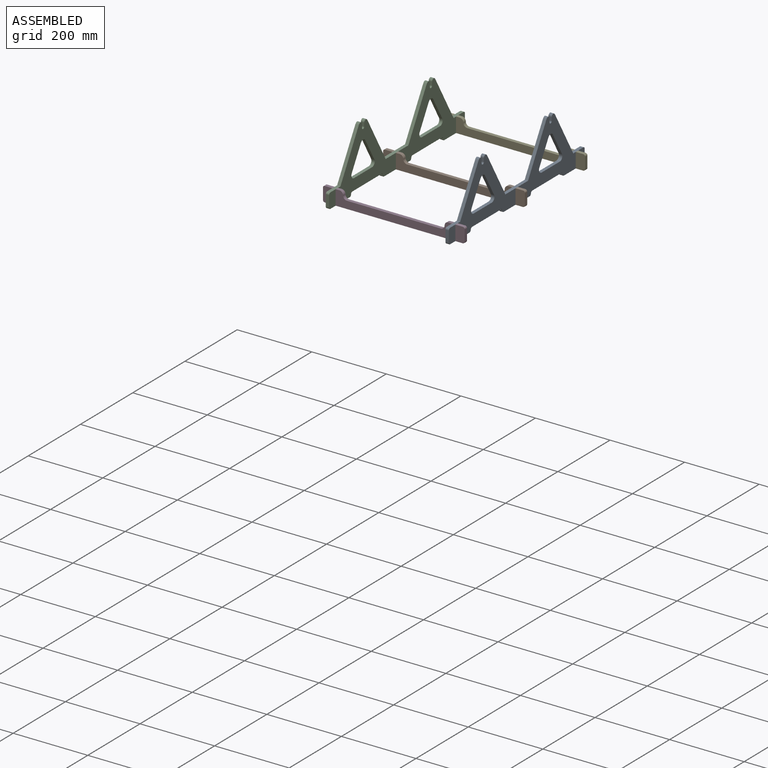
[diagram: assembled view]
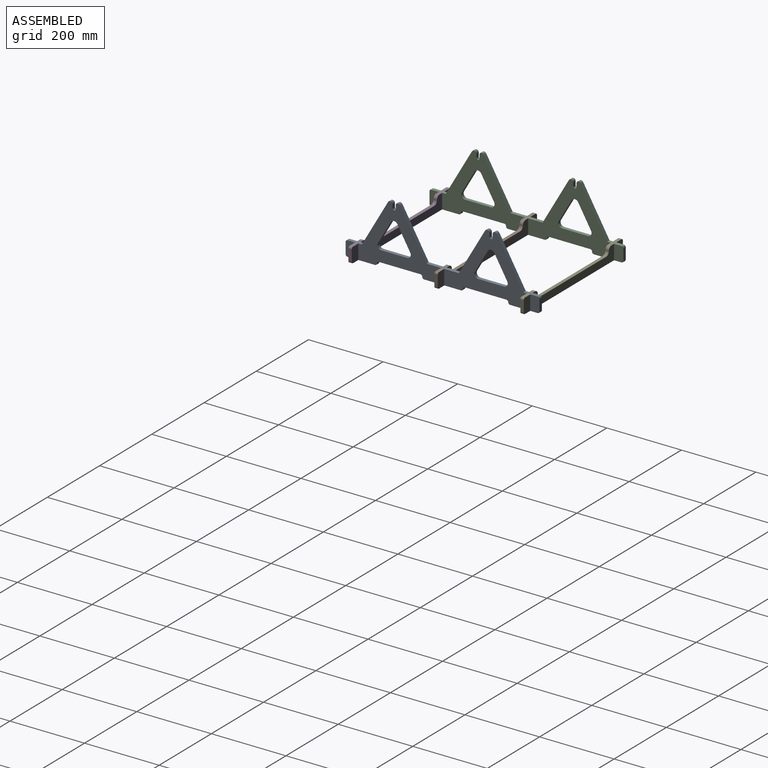
[diagram: assembled view, second angle]
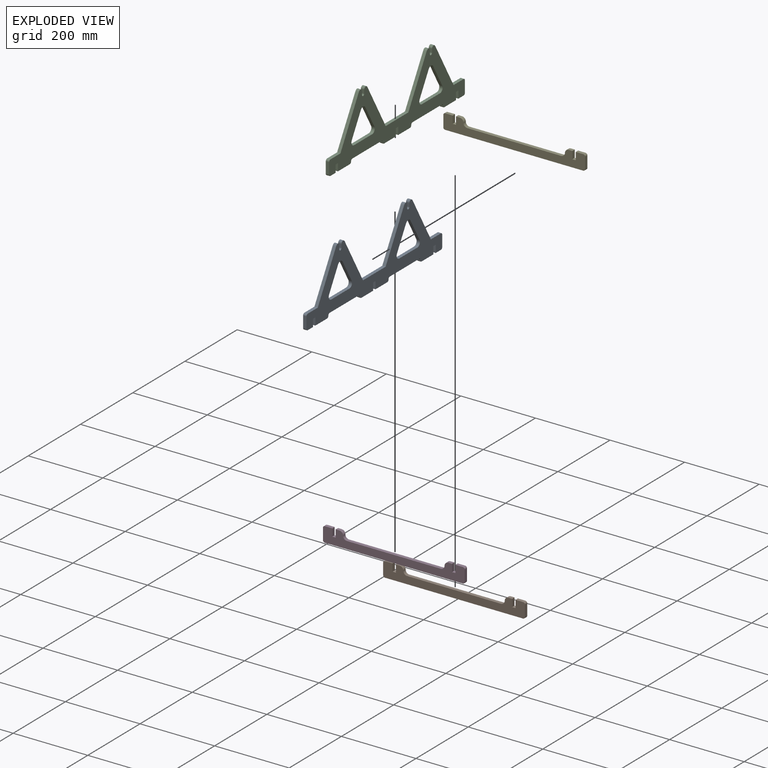
[diagram: exploded view]
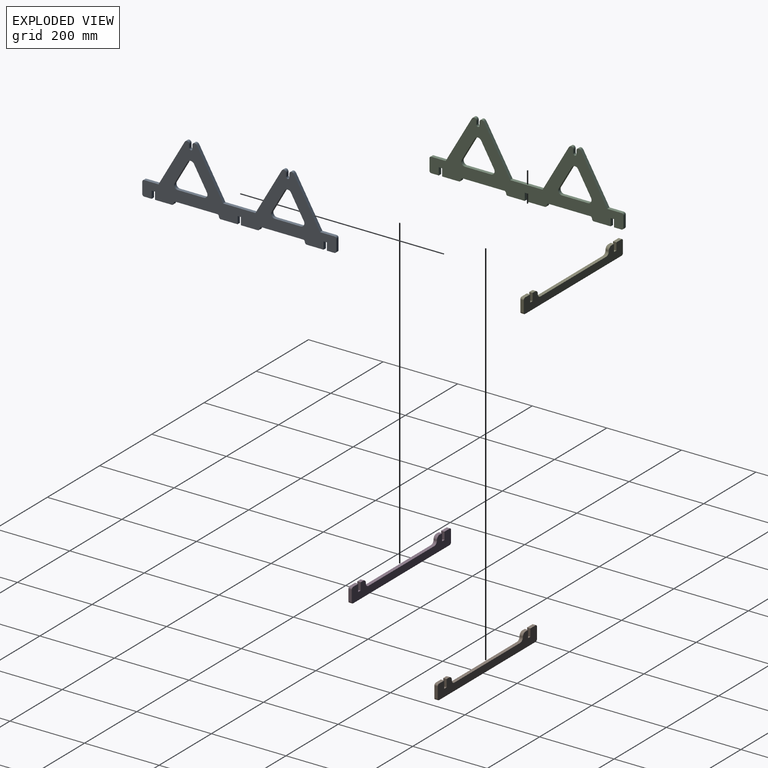
[diagram: exploded view, second angle]
ASSEMBLY  parts=5 mates=4
PART A: 66 faces, bbox 9x520x165.5 mm
  f0: plane 45x9mm, normal (0,0,-1), area 405mm2, adj f2,f3,f21,f55
  f1: plane 45x9mm, normal (0,0,-1), area 405mm2, adj f2,f3,f25,f51
  f2: plane 520x165.54mm, normal (1,0,0), area 33791mm2, adj f0,f1,f4,f5,f6,f7,f8,f9
  f3: plane 520x165.54mm, normal (-1,0,0), area 33791mm2, adj f0,f1,f4,f5,f6,f7,f8,f9
  f4: plane 86.8x9mm, normal (0,0,1), area 781.2mm2, adj f2,f3,f5,f39
  f5: plane 120x69.28mm, normal (0,0.87,0.5), area 1247.1mm2, adj f2,f3,f4,f6
  f6: cylinder r=20mm len=9mm, axis (1,0,0), area 40.6mm2, adj f2,f3,f5,f7
  f7: cylinder r=6mm len=10.39mm, axis (1,0,0), area 129.2mm2, adj f2,f3,f6,f8
  f8: plane 9.54x9mm, normal (0,-1,0), area 85.8mm2, adj f2,f3,f7,f9
  f9: cylinder r=4.25mm len=9mm, axis (1,0,0), area 120.2mm2, adj f2,f3,f8,f10
  f10: plane 9.54x9mm, normal (0,1,0), area 85.8mm2, adj f2,f3,f9,f11
  f11: cylinder r=6mm len=10.39mm, axis (1,0,0), area 129.2mm2, adj f2,f3,f10,f12
  f12: cylinder r=20mm len=9mm, axis (1,0,0), area 40.6mm2, adj f2,f3,f11,f13
  f13: plane 120x69.28mm, normal (0,-0.87,0.5), area 1247.1mm2, adj f2,f3,f12,f14
  f14: plane 38.4x9mm, normal (0,0,1), area 345.6mm2, adj f2,f3,f13,f56
  f15: plane 30x9mm, normal (0,-1,0), area 270mm2, adj f2,f3,f56,f57
  f16: plane 20x9mm, normal (0,0,-1), area 180mm2, adj f2,f3,f17,f57
  f17: plane 20x9mm, normal (0,1,0), area 180mm2, adj f2,f3,f16,f18
  f18: plane 9x9mm, normal (0,0,-1), area 81mm2, adj f2,f3,f17,f19
  f19: plane 20x9mm, normal (0,-1,0), area 180mm2, adj f2,f3,f18,f20
  f20: plane 45x9mm, normal (0,0,-1), area 405mm2, adj f2,f3,f19,f53
  f21: plane 20x9mm, normal (0,1,0), area 180mm2, adj f0,f2,f3,f22
  f22: plane 9x9mm, normal (0,0,-1), area 81mm2, adj f2,f3,f21,f23
  f23: plane 20x9mm, normal (0,-1,0), area 180mm2, adj f2,f3,f22,f24
  f24: plane 45x9mm, normal (0,0,-1), area 405mm2, adj f2,f3,f23,f49
  f25: plane 20x9mm, normal (0,1,0), area 180mm2, adj f1,f2,f3,f26
  f26: plane 9x9mm, normal (0,0,-1), area 81mm2, adj f2,f3,f25,f27
  f27: plane 20x9mm, normal (0,-1,0), area 180mm2, adj f2,f3,f26,f28
  f28: plane 20x9mm, normal (0,0,-1), area 180mm2, adj f2,f3,f27,f58
  f29: plane 30x9mm, normal (0,1,0), area 270mm2, adj f2,f3,f58,f59
  f30: plane 38.4x9mm, normal (0,0,1), area 345.6mm2, adj f2,f3,f31,f59
  f31: plane 120x69.28mm, normal (0,0.87,0.5), area 1247.1mm2, adj f2,f3,f30,f32
  f32: cylinder r=20mm len=9mm, axis (1,0,0), area 40.6mm2, adj f2,f3,f31,f33
  f33: cylinder r=6mm len=10.39mm, axis (1,0,0), area 129.2mm2, adj f2,f3,f32,f34
  f34: plane 9.54x9mm, normal (0,-1,0), area 85.8mm2, adj f2,f3,f33,f35
  f35: cylinder r=4.25mm len=9mm, axis (1,0,0), area 120.2mm2, adj f2,f3,f34,f36
  f36: plane 9.54x9mm, normal (0,1,0), area 85.8mm2, adj f2,f3,f35,f37
  f37: cylinder r=6mm len=10.39mm, axis (1,0,0), area 129.2mm2, adj f2,f3,f36,f38
  f38: cylinder r=20mm len=9mm, axis (1,0,0), area 40.6mm2, adj f2,f3,f37,f39
  f39: plane 120x69.28mm, normal (0,-0.87,0.5), area 1247.1mm2, adj f2,f3,f4,f38
  f40: plane 69.28x9mm, normal (0,0,1), area 623.5mm2, adj f2,f3,f60,f61
  f41: plane 60x34.64mm, normal (0,-0.87,-0.5), area 623.5mm2, adj f2,f3,f60,f62
  f42: plane 60x34.64mm, normal (0,0.87,-0.5), area 623.5mm2, adj f2,f3,f61,f62
  f43: plane 69.28x9mm, normal (0,0,1), area 623.5mm2, adj f2,f3,f63,f65
  f44: plane 60x34.64mm, normal (0,0.87,-0.5), area 623.5mm2, adj f2,f3,f63,f64
  f45: plane 60x34.64mm, normal (0,-0.87,-0.5), area 623.5mm2, adj f2,f3,f64,f65
  f46: plane 111.5x9mm, normal (0,0,-1), area 1003.5mm2, adj f2,f3,f48,f50
  f47: plane 111.5x9mm, normal (0,0,-1), area 1003.5mm2, adj f2,f3,f52,f54
  f48: cylinder r=5mm len=9mm, axis (1,0,0), area 70.7mm2, adj f2,f3,f46,f49
  f49: cylinder r=5mm len=9mm, axis (-1,0,0), area 70.7mm2, adj f2,f3,f24,f48
  f50: cylinder r=5mm len=9mm, axis (-1,0,0), area 70.7mm2, adj f2,f3,f46,f51
  f51: cylinder r=5mm len=9mm, axis (1,0,0), area 70.7mm2, adj f1,f2,f3,f50
  f52: cylinder r=5mm len=9mm, axis (-1,0,0), area 70.7mm2, adj f2,f3,f47,f53
  f53: cylinder r=5mm len=9mm, axis (-1,0,0), area 70.7mm2, adj f2,f3,f20,f52
  f54: cylinder r=5mm len=9mm, axis (1,0,0), area 70.7mm2, adj f2,f3,f47,f55
  f55: cylinder r=5mm len=9mm, axis (1,0,0), area 70.7mm2, adj f0,f2,f3,f54
  f56: cylinder r=5mm len=9mm, axis (-1,0,0), area 70.7mm2, adj f2,f3,f14,f15
  f57: cylinder r=5mm len=9mm, axis (1,0,0), area 70.7mm2, adj f2,f3,f15,f16
  f58: cylinder r=5mm len=9mm, axis (-1,0,0), area 70.7mm2, adj f2,f3,f28,f29
  f59: cylinder r=5mm len=9mm, axis (1,0,0), area 70.7mm2, adj f2,f3,f29,f30
  f60: cylinder r=10mm len=15mm, axis (1,0,0), area 188.5mm2, adj f2,f3,f40,f41
  f61: cylinder r=10mm len=15mm, axis (-1,0,0), area 188.5mm2, adj f2,f3,f40,f42
  f62: cylinder r=10mm len=17.32mm, axis (1,0,0), area 188.5mm2, adj f2,f3,f41,f42
  f63: cylinder r=10mm len=15mm, axis (1,0,0), area 188.5mm2, adj f2,f3,f43,f44
  f64: cylinder r=10mm len=17.32mm, axis (1,0,0), area 188.5mm2, adj f2,f3,f44,f45
  f65: cylinder r=10mm len=15mm, axis (-1,0,0), area 188.5mm2, adj f2,f3,f43,f45
PART B: 24 faces, bbox 380x9x40 mm
  f0: plane 30x9mm, normal (-1,0,0), area 270mm2, adj f14,f15,f16,f19
  f1: plane 370x9mm, normal (0,0,-1), area 3330mm2, adj f14,f15,f16,f17
  f2: plane 30x9mm, normal (1,0,0), area 270mm2, adj f14,f15,f17,f18
  f3: plane 20x9mm, normal (0,0,1), area 180mm2, adj f4,f14,f15,f18
  f4: plane 20x9mm, normal (-1,0,0), area 180mm2, adj f3,f5,f14,f15
  f5: plane 9x9mm, normal (0,0,1), area 81mm2, adj f4,f6,f14,f15
  f6: plane 20x9mm, normal (1,0,0), area 180mm2, adj f5,f7,f14,f15
  f7: plane 10x9mm, normal (0,0,1), area 90mm2, adj f6,f14,f15,f21
  f8: plane 252x9mm, normal (0,0,1), area 2268mm2, adj f14,f15,f20,f23
  f9: plane 10x9mm, normal (0,0,1), area 90mm2, adj f10,f14,f15,f22
  f10: plane 20x9mm, normal (-1,0,0), area 180mm2, adj f9,f11,f14,f15
  f11: plane 9x9mm, normal (0,0,1), area 81mm2, adj f10,f12,f14,f15
  f12: plane 20x9mm, normal (1,0,0), area 180mm2, adj f11,f13,f14,f15
  f13: plane 20x9mm, normal (0,0,1), area 180mm2, adj f12,f14,f15,f19
  f14: plane 380x40mm, normal (0,-1,0), area 9378.5mm2, adj f0,f1,f2,f3,f4,f5,f6,f7
  f15: plane 380x40mm, normal (0,1,0), area 9378.5mm2, adj f0,f1,f2,f3,f4,f5,f6,f7
  f16: cylinder r=5mm len=9mm, axis (0,-1,0), area 70.7mm2, adj f0,f1,f14,f15
  f17: cylinder r=5mm len=9mm, axis (0,1,0), area 70.7mm2, adj f1,f2,f14,f15
  f18: cylinder r=5mm len=9mm, axis (0,1,0), area 70.7mm2, adj f2,f3,f14,f15
  f19: cylinder r=5mm len=9mm, axis (0,-1,0), area 70.7mm2, adj f0,f13,f14,f15
  f20: cylinder r=10mm len=10mm, axis (0,1,0), area 141.4mm2, adj f8,f14,f15,f21
  f21: cylinder r=10mm len=10mm, axis (0,1,0), area 141.4mm2, adj f7,f14,f15,f20
  f22: cylinder r=10mm len=10mm, axis (0,-1,0), area 141.4mm2, adj f9,f14,f15,f23
  f23: cylinder r=10mm len=10mm, axis (0,-1,0), area 141.4mm2, adj f8,f14,f15,f22
PART C: same geometry as A
PART D: same geometry as B
PART E: same geometry as B
PLACE A t=(2.77,117.54,-47.86)mm fixed
PLACE B t=(2.77,117.54,-47.86)mm
PLACE C t=(-318.23,117.54,-47.86)mm
PLACE D t=(2.77,-112.96,-47.86)mm
PLACE E t=(2.77,348.04,-47.86)mm
MATE fastened D.f5 <-> A.f18  axis (0,0,1) through (163.27,-112.96,-27.86)mm
MATE fastened E.f5 <-> A.f26  axis (0,0,1) through (163.27,348.04,-27.86)mm
MATE fastened B.f5 <-> A.f22  axis (0,0,1) through (163.27,117.54,-27.86)mm
MATE fastened C.f18 <-> D.f11  axis (0,0,-1) through (-157.73,-112.96,-27.86)mm
